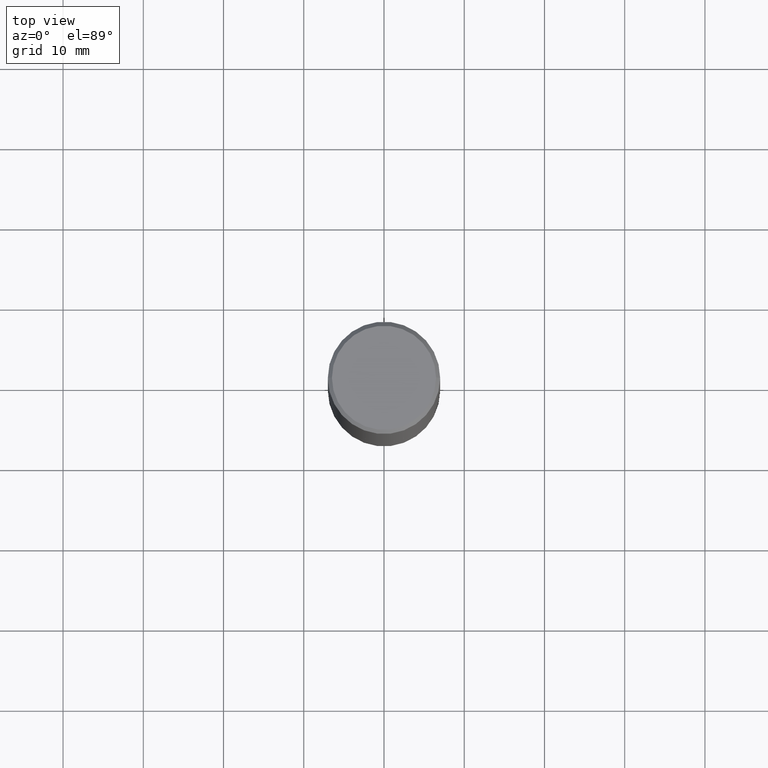
[diagram: clean part render]
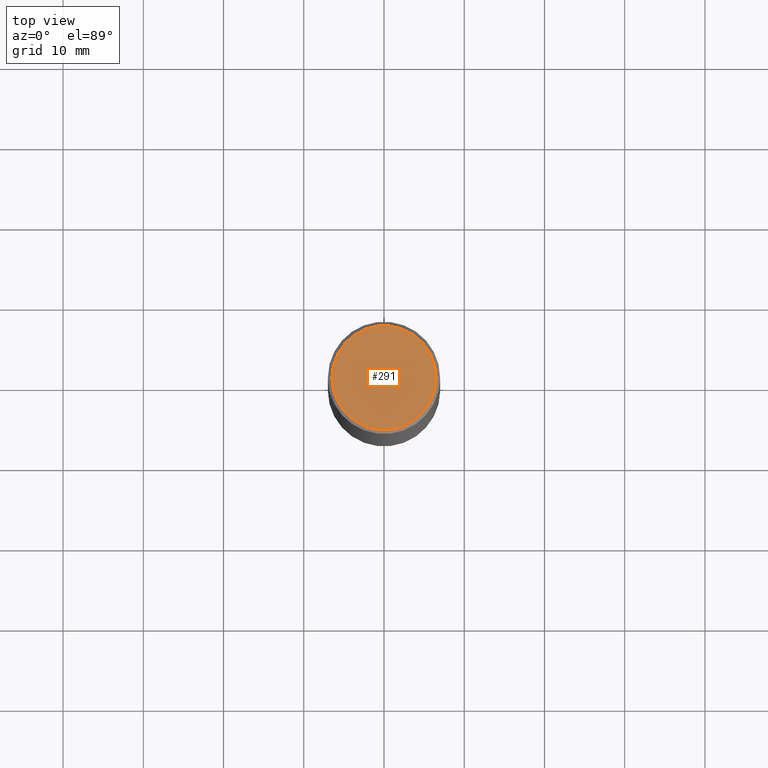
[diagram: same view with one face highlighted and labeled with its STEP entity id]
A machine part, top view. The second image highlights one B-rep face of the part: STEP entity #291.
In plain terms, the highlighted planar face has unit normal (0, -0, -1).
Its self-contained STEP definition (entity closure, byte-faithful):
#5 = DIRECTION ( 'NONE',  ( -2.445468806185136597E-29, 3.491481338843145583E-15, 1.000000000000000000 ) ) ;
#15 = EDGE_CURVE ( 'NONE', #203, #286, #32, .T. ) ;
#30 = CARTESIAN_POINT ( 'NONE',  ( 1.784845260416607569E-15, 0.2555999999999997163, -8.881541177182066117E-16 ) ) ;
#32 = CIRCLE ( 'NONE', #75, 0.2555999999999997163 ) ;
#37 = ORIENTED_EDGE ( 'NONE', *, *, #162, .T. ) ;
#52 = EDGE_LOOP ( 'NONE', ( #322, #37 ) ) ;
#61 = CIRCLE ( 'NONE', #206, 0.2555999999999997163 ) ;
#75 = AXIS2_PLACEMENT_3D ( 'NONE', #323, #293, #238 ) ;
#90 = DIRECTION ( 'NONE',  ( -1.000000000000000000, 6.982962677686265922E-15, -4.876176775795935793E-29 ) ) ;
#93 = DIRECTION ( 'NONE',  ( 1.000000000000000000, -6.982962677686267499E-15, 4.876201967404967742E-29 ) ) ;
#133 = CARTESIAN_POINT ( 'NONE',  ( -0.2555999999999997163, 1.819760073805039218E-15, 8.537024980188219272E-18 ) ) ;
#140 = FACE_OUTER_BOUND ( 'NONE', #52, .T. ) ;
#162 = EDGE_CURVE ( 'NONE', #286, #203, #61, .T. ) ;
#168 = CARTESIAN_POINT ( 'NONE',  ( 0.2555999999999997163, -1.857063081596548453E-15, 8.537024980213556806E-18 ) ) ;
#183 = CARTESIAN_POINT ( 'NONE',  ( -2.087702828670439639E-46, 2.980686340760894400E-32, 8.537024980200822558E-18 ) ) ;
#202 = DIRECTION ( 'NONE',  ( 2.438088387897960049E-29, -3.491481338843145188E-15, -1.000000000000000000 ) ) ;
#203 = VERTEX_POINT ( 'NONE', #133 ) ;
#206 = AXIS2_PLACEMENT_3D ( 'NONE', #183, #5, #93 ) ;
#238 = DIRECTION ( 'NONE',  ( 1.000000000000000000, -6.982962677686267499E-15, 4.876201967404967742E-29 ) ) ;
#256 = PLANE ( 'NONE',  #347 ) ;
#286 = VERTEX_POINT ( 'NONE', #168 ) ;
#291 = ADVANCED_FACE ( 'NONE', ( #140 ), #256, .F. ) ;
#293 = DIRECTION ( 'NONE',  ( -2.445468806185136597E-29, 3.491481338843145583E-15, 1.000000000000000000 ) ) ;
#322 = ORIENTED_EDGE ( 'NONE', *, *, #15, .T. ) ;
#323 = CARTESIAN_POINT ( 'NONE',  ( -2.087702828670439639E-46, 2.980686340760894400E-32, 8.537024980200822558E-18 ) ) ;
#347 = AXIS2_PLACEMENT_3D ( 'NONE', #30, #202, #90 ) ;